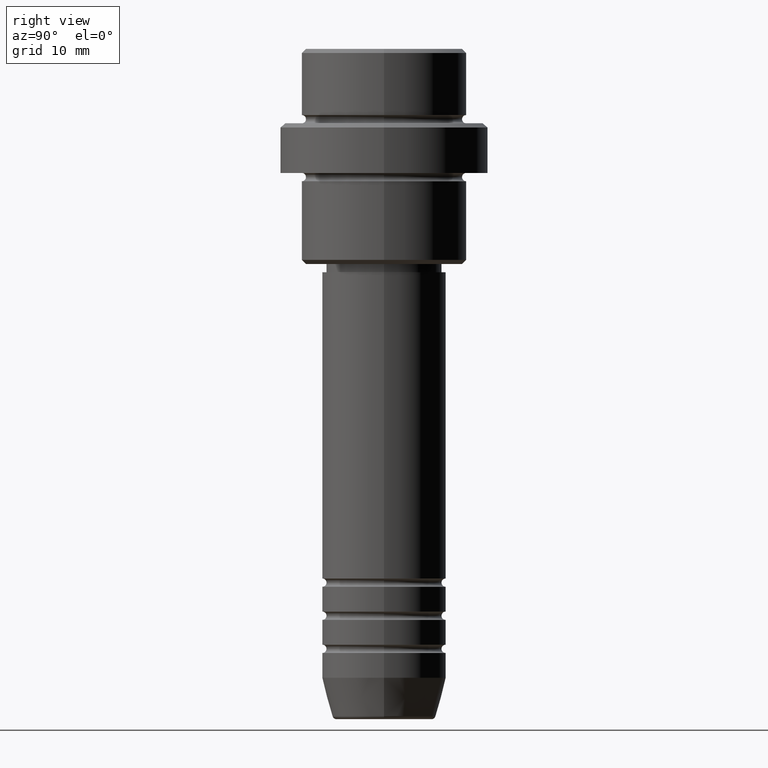
[diagram: clean part render]
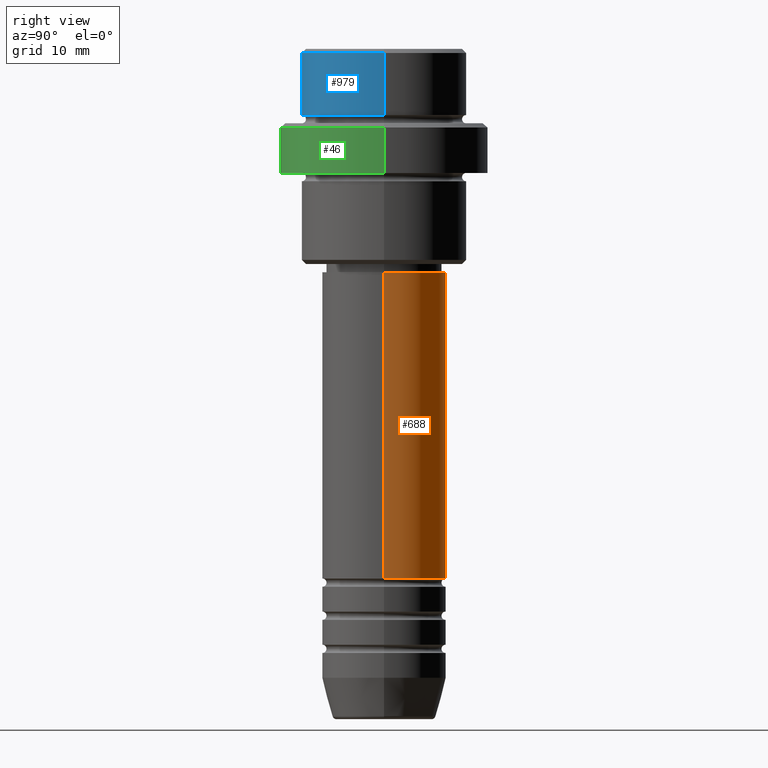
[diagram: same view with three faces highlighted in distinct colors, each labeled with its STEP entity id]
A machine part, right view with three faces highlighted in distinct colors.
Their STEP definitions:

[orange] entity #688 — the highlighted cylindrical surface (partial cylindrical patch) has radius 7.5 mm, axis along (-0, -0, 1).
#4 = DIRECTION ( 'NONE',  ( 1.000000000000000000, 0.000000000000000000, 0.000000000000000000 ) ) ;
#62 = CYLINDRICAL_SURFACE ( 'NONE', #818, 7.500000000000000000 ) ;
#71 = DIRECTION ( 'NONE',  ( -0.000000000000000000, -0.000000000000000000, 1.000000000000000000 ) ) ;
#117 = DIRECTION ( 'NONE',  ( -0.000000000000000000, -0.000000000000000000, 1.000000000000000000 ) ) ;
#132 = CARTESIAN_POINT ( 'NONE',  ( 0.000000000000000000, 0.000000000000000000, -27.00000000000000355 ) ) ;
#174 = CARTESIAN_POINT ( 'NONE',  ( -7.500000000000000000, 9.184850993605147944E-16, 0.000000000000000000 ) ) ;
#278 = EDGE_CURVE ( 'NONE', #851, #1180, #870, .T. ) ;
#282 = ORIENTED_EDGE ( 'NONE', *, *, #995, .F. ) ;
#292 = DIRECTION ( 'NONE',  ( -0.000000000000000000, -0.000000000000000000, 1.000000000000000000 ) ) ;
#407 = CIRCLE ( 'NONE', #665, 7.500000000000000000 ) ;
#428 = VERTEX_POINT ( 'NONE', #1204 ) ;
#437 = CARTESIAN_POINT ( 'NONE',  ( 7.500000000000000000, 0.000000000000000000, 0.000000000000000000 ) ) ;
#556 = AXIS2_PLACEMENT_3D ( 'NONE', #132, #561, #1261 ) ;
#561 = DIRECTION ( 'NONE',  ( -0.000000000000000000, -0.000000000000000000, 1.000000000000000000 ) ) ;
#578 = VECTOR ( 'NONE', #991, 1000.000000000000000 ) ;
#651 = CARTESIAN_POINT ( 'NONE',  ( 0.000000000000000000, 0.000000000000000000, -63.99999999999989342 ) ) ;
#665 = AXIS2_PLACEMENT_3D ( 'NONE', #651, #117, #4 ) ;
#688 = ADVANCED_FACE ( 'NONE', ( #1175 ), #62, .T. ) ;
#710 = LINE ( 'NONE', #174, #578 ) ;
#761 = CARTESIAN_POINT ( 'NONE',  ( 7.500000000000000000, 0.000000000000000000, -63.99999999999989342 ) ) ;
#794 = EDGE_CURVE ( 'NONE', #851, #428, #407, .T. ) ;
#818 = AXIS2_PLACEMENT_3D ( 'NONE', #852, #71, #944 ) ;
#839 = ORIENTED_EDGE ( 'NONE', *, *, #278, .F. ) ;
#845 = CARTESIAN_POINT ( 'NONE',  ( -7.500000000000000000, 9.184850993605147944E-16, -27.00000000000000355 ) ) ;
#851 = VERTEX_POINT ( 'NONE', #761 ) ;
#852 = CARTESIAN_POINT ( 'NONE',  ( 0.000000000000000000, 0.000000000000000000, 0.000000000000000000 ) ) ;
#870 = LINE ( 'NONE', #437, #1266 ) ;
#944 = DIRECTION ( 'NONE',  ( 1.000000000000000000, 0.000000000000000000, 0.000000000000000000 ) ) ;
#991 = DIRECTION ( 'NONE',  ( -0.000000000000000000, -0.000000000000000000, 1.000000000000000000 ) ) ;
#995 = EDGE_CURVE ( 'NONE', #1180, #1413, #1208, .T. ) ;
#1026 = ORIENTED_EDGE ( 'NONE', *, *, #1064, .T. ) ;
#1064 = EDGE_CURVE ( 'NONE', #428, #1413, #710, .T. ) ;
#1128 = ORIENTED_EDGE ( 'NONE', *, *, #794, .T. ) ;
#1175 = FACE_OUTER_BOUND ( 'NONE', #1380, .T. ) ;
#1180 = VERTEX_POINT ( 'NONE', #1414 ) ;
#1204 = CARTESIAN_POINT ( 'NONE',  ( -7.500000000000000000, 9.184850993605147944E-16, -63.99999999999989342 ) ) ;
#1208 = CIRCLE ( 'NONE', #556, 7.500000000000000000 ) ;
#1261 = DIRECTION ( 'NONE',  ( 1.000000000000000000, 0.000000000000000000, 0.000000000000000000 ) ) ;
#1266 = VECTOR ( 'NONE', #292, 1000.000000000000000 ) ;
#1380 = EDGE_LOOP ( 'NONE', ( #1128, #1026, #282, #839 ) ) ;
#1413 = VERTEX_POINT ( 'NONE', #845 ) ;
#1414 = CARTESIAN_POINT ( 'NONE',  ( 7.500000000000000000, 0.000000000000000000, -27.00000000000000355 ) ) ;

[blue] entity #979 — the highlighted cylindrical surface (partial cylindrical patch) has radius 10 mm, axis along (-0, -0, 1).
#2 = VERTEX_POINT ( 'NONE', #927 ) ;
#3 = DIRECTION ( 'NONE',  ( 0.000000000000000000, 0.000000000000000000, -1.000000000000000000 ) ) ;
#29 = ORIENTED_EDGE ( 'NONE', *, *, #31, .F. ) ;
#31 = EDGE_CURVE ( 'NONE', #657, #2, #69, .T. ) ;
#47 = CARTESIAN_POINT ( 'NONE',  ( -9.999999999999998224, 1.224646799147353059E-15, -7.999999999999998224 ) ) ;
#51 = DIRECTION ( 'NONE',  ( -0.000000000000000000, -0.000000000000000000, 1.000000000000000000 ) ) ;
#69 = LINE ( 'NONE', #362, #315 ) ;
#98 = VERTEX_POINT ( 'NONE', #882 ) ;
#125 = CIRCLE ( 'NONE', #627, 9.999999999999998224 ) ;
#138 = ORIENTED_EDGE ( 'NONE', *, *, #156, .T. ) ;
#156 = EDGE_CURVE ( 'NONE', #657, #98, #1243, .T. ) ;
#199 = AXIS2_PLACEMENT_3D ( 'NONE', #1355, #384, #826 ) ;
#315 = VECTOR ( 'NONE', #799, 1000.000000000000000 ) ;
#362 = CARTESIAN_POINT ( 'NONE',  ( -9.999999999999998224, 1.224646799147353059E-15, 0.000000000000000000 ) ) ;
#384 = DIRECTION ( 'NONE',  ( -0.000000000000000000, -0.000000000000000000, 1.000000000000000000 ) ) ;
#387 = CARTESIAN_POINT ( 'NONE',  ( 0.000000000000000000, 0.000000000000000000, -7.999999999999998224 ) ) ;
#456 = EDGE_CURVE ( 'NONE', #837, #2, #125, .T. ) ;
#494 = ORIENTED_EDGE ( 'NONE', *, *, #456, .T. ) ;
#536 = CARTESIAN_POINT ( 'NONE',  ( 9.999999999999998224, 0.000000000000000000, -0.4999999999999970024 ) ) ;
#623 = AXIS2_PLACEMENT_3D ( 'NONE', #387, #1267, #725 ) ;
#627 = AXIS2_PLACEMENT_3D ( 'NONE', #986, #3, #771 ) ;
#657 = VERTEX_POINT ( 'NONE', #47 ) ;
#714 = EDGE_LOOP ( 'NONE', ( #29, #138, #1030, #494 ) ) ;
#725 = DIRECTION ( 'NONE',  ( 1.000000000000000000, 0.000000000000000000, 0.000000000000000000 ) ) ;
#771 = DIRECTION ( 'NONE',  ( 1.000000000000000000, 0.000000000000000000, 0.000000000000000000 ) ) ;
#799 = DIRECTION ( 'NONE',  ( -0.000000000000000000, -0.000000000000000000, 1.000000000000000000 ) ) ;
#802 = CARTESIAN_POINT ( 'NONE',  ( 9.999999999999998224, 0.000000000000000000, 0.000000000000000000 ) ) ;
#826 = DIRECTION ( 'NONE',  ( 1.000000000000000000, 0.000000000000000000, 0.000000000000000000 ) ) ;
#837 = VERTEX_POINT ( 'NONE', #536 ) ;
#882 = CARTESIAN_POINT ( 'NONE',  ( 9.999999999999998224, 0.000000000000000000, -7.999999999999998224 ) ) ;
#924 = FACE_OUTER_BOUND ( 'NONE', #714, .T. ) ;
#927 = CARTESIAN_POINT ( 'NONE',  ( -9.999999999999998224, 1.224646799147353059E-15, -0.4999999999999970024 ) ) ;
#979 = ADVANCED_FACE ( 'NONE', ( #924 ), #1256, .T. ) ;
#986 = CARTESIAN_POINT ( 'NONE',  ( 0.000000000000000000, 0.000000000000000000, -0.4999999999999970024 ) ) ;
#1030 = ORIENTED_EDGE ( 'NONE', *, *, #1332, .T. ) ;
#1116 = VECTOR ( 'NONE', #51, 1000.000000000000000 ) ;
#1143 = LINE ( 'NONE', #802, #1116 ) ;
#1243 = CIRCLE ( 'NONE', #623, 9.999999999999998224 ) ;
#1256 = CYLINDRICAL_SURFACE ( 'NONE', #199, 9.999999999999998224 ) ;
#1267 = DIRECTION ( 'NONE',  ( -0.000000000000000000, -0.000000000000000000, 1.000000000000000000 ) ) ;
#1332 = EDGE_CURVE ( 'NONE', #98, #837, #1143, .T. ) ;
#1355 = CARTESIAN_POINT ( 'NONE',  ( 0.000000000000000000, 0.000000000000000000, 0.000000000000000000 ) ) ;

[green] entity #46 — the highlighted cylindrical surface (partial cylindrical patch) has radius 12.5 mm, axis along (-0, -0, 1).
#26 = DIRECTION ( 'NONE',  ( -0.000000000000000000, -0.000000000000000000, 1.000000000000000000 ) ) ;
#46 = ADVANCED_FACE ( 'NONE', ( #1141 ), #148, .T. ) ;
#55 = AXIS2_PLACEMENT_3D ( 'NONE', #1234, #26, #1124 ) ;
#148 = CYLINDRICAL_SURFACE ( 'NONE', #1313, 12.50000000000000000 ) ;
#157 = DIRECTION ( 'NONE',  ( 1.000000000000000000, 0.000000000000000000, 0.000000000000000000 ) ) ;
#288 = EDGE_CURVE ( 'NONE', #552, #1274, #1069, .T. ) ;
#303 = ORIENTED_EDGE ( 'NONE', *, *, #671, .T. ) ;
#313 = EDGE_LOOP ( 'NONE', ( #904, #303, #1365, #730 ) ) ;
#316 = VECTOR ( 'NONE', #493, 1000.000000000000000 ) ;
#424 = CARTESIAN_POINT ( 'NONE',  ( 12.50000000000000000, 0.000000000000000000, -15.00000000000000178 ) ) ;
#475 = DIRECTION ( 'NONE',  ( -0.000000000000000000, -0.000000000000000000, 1.000000000000000000 ) ) ;
#493 = DIRECTION ( 'NONE',  ( -0.000000000000000000, -0.000000000000000000, 1.000000000000000000 ) ) ;
#495 = EDGE_CURVE ( 'NONE', #1274, #735, #1037, .T. ) ;
#552 = VERTEX_POINT ( 'NONE', #424 ) ;
#577 = CARTESIAN_POINT ( 'NONE',  ( 0.000000000000000000, 0.000000000000000000, 0.000000000000000000 ) ) ;
#587 = CARTESIAN_POINT ( 'NONE',  ( 12.50000000000000000, 0.000000000000000000, -9.499999999999992895 ) ) ;
#643 = LINE ( 'NONE', #1110, #749 ) ;
#671 = EDGE_CURVE ( 'NONE', #964, #552, #1316, .T. ) ;
#693 = CARTESIAN_POINT ( 'NONE',  ( 0.000000000000000000, 0.000000000000000000, -9.499999999999992895 ) ) ;
#730 = ORIENTED_EDGE ( 'NONE', *, *, #495, .T. ) ;
#735 = VERTEX_POINT ( 'NONE', #1281 ) ;
#749 = VECTOR ( 'NONE', #983, 1000.000000000000000 ) ;
#809 = DIRECTION ( 'NONE',  ( 1.000000000000000000, 0.000000000000000000, 0.000000000000000000 ) ) ;
#860 = EDGE_CURVE ( 'NONE', #964, #735, #643, .T. ) ;
#904 = ORIENTED_EDGE ( 'NONE', *, *, #860, .F. ) ;
#964 = VERTEX_POINT ( 'NONE', #1121 ) ;
#983 = DIRECTION ( 'NONE',  ( -0.000000000000000000, -0.000000000000000000, 1.000000000000000000 ) ) ;
#1037 = CIRCLE ( 'NONE', #1220, 12.50000000000000000 ) ;
#1046 = CARTESIAN_POINT ( 'NONE',  ( 12.50000000000000000, 0.000000000000000000, 0.000000000000000000 ) ) ;
#1069 = LINE ( 'NONE', #1046, #316 ) ;
#1110 = CARTESIAN_POINT ( 'NONE',  ( -12.50000000000000000, 1.530808498934191521E-15, 0.000000000000000000 ) ) ;
#1121 = CARTESIAN_POINT ( 'NONE',  ( -12.50000000000000000, 1.530808498934191521E-15, -15.00000000000000178 ) ) ;
#1124 = DIRECTION ( 'NONE',  ( 1.000000000000000000, 0.000000000000000000, 0.000000000000000000 ) ) ;
#1139 = DIRECTION ( 'NONE',  ( 0.000000000000000000, 0.000000000000000000, -1.000000000000000000 ) ) ;
#1141 = FACE_OUTER_BOUND ( 'NONE', #313, .T. ) ;
#1220 = AXIS2_PLACEMENT_3D ( 'NONE', #693, #1139, #157 ) ;
#1234 = CARTESIAN_POINT ( 'NONE',  ( 0.000000000000000000, 0.000000000000000000, -15.00000000000000178 ) ) ;
#1274 = VERTEX_POINT ( 'NONE', #587 ) ;
#1281 = CARTESIAN_POINT ( 'NONE',  ( -12.50000000000000000, 1.530808498934191521E-15, -9.499999999999992895 ) ) ;
#1313 = AXIS2_PLACEMENT_3D ( 'NONE', #577, #475, #809 ) ;
#1316 = CIRCLE ( 'NONE', #55, 12.50000000000000000 ) ;
#1365 = ORIENTED_EDGE ( 'NONE', *, *, #288, .T. ) ;